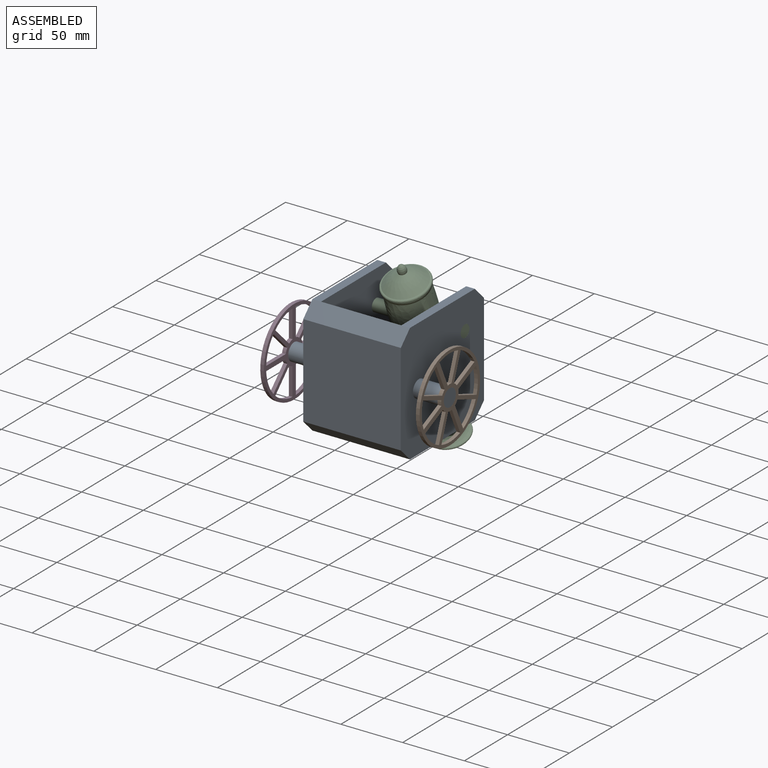
[diagram: assembled view]
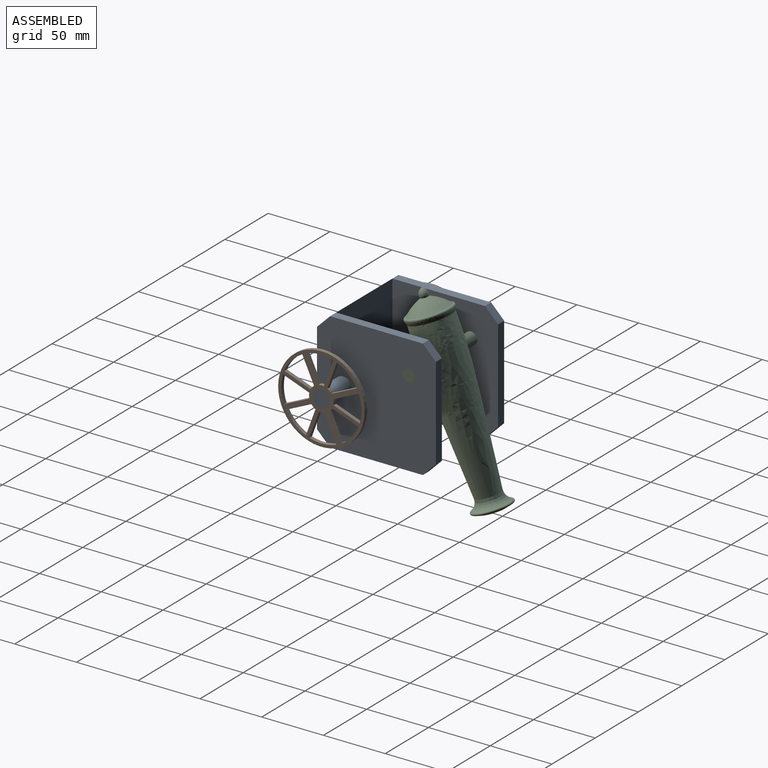
[diagram: assembled view, second angle]
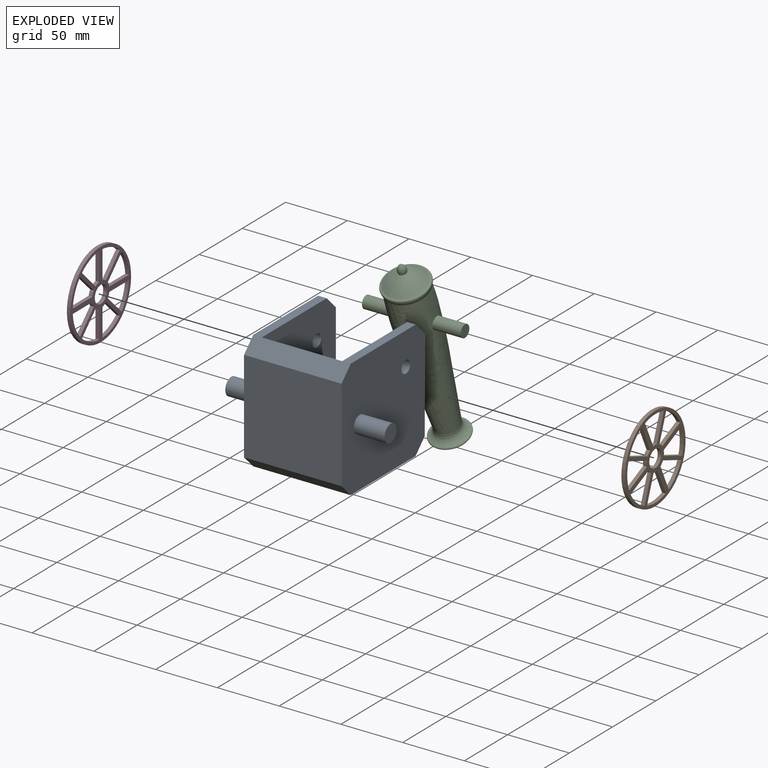
[diagram: exploded view]
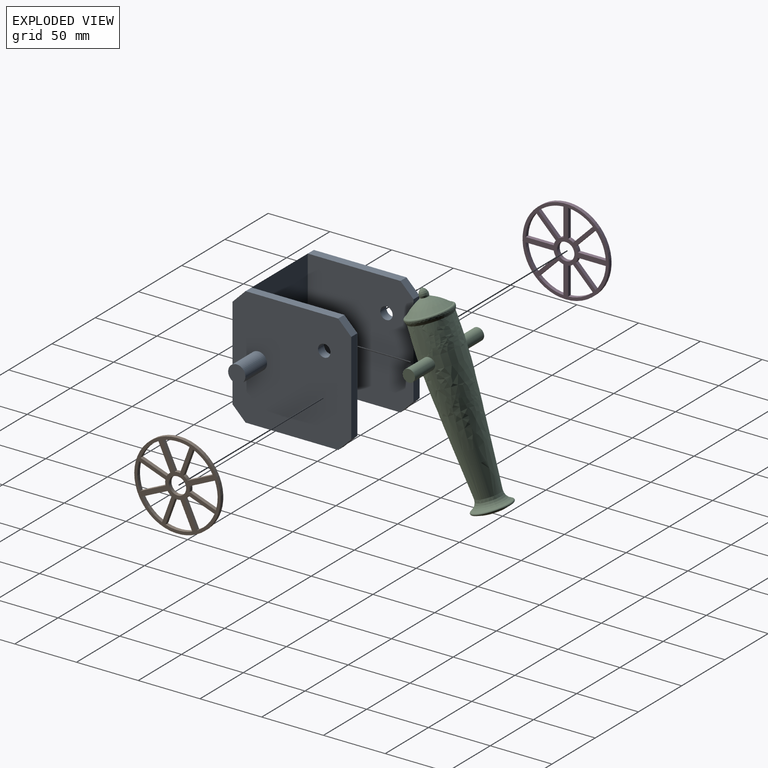
[diagram: exploded view, second angle]
ASSEMBLY  parts=4 mates=3
PART A: 24 faces, bbox 129x96.2x96.2 mm
  f0: plane 10.61x10.61mm, normal (0,0.71,0.71), area 105mm2, adj f1,f8,f9,f10
  f1: plane 75x7mm, normal (0,0,1), area 525mm2, adj f0,f2,f9,f10
  f2: plane 79x10.61mm, normal (0,-0.71,0.71), area 1185mm2, adj f1,f3,f10,f11,f13,f14
  f3: plane 79x75mm, normal (0,-1,0), area 5925mm2, adj f2,f4,f10,f13
  f4: plane 79x10.61mm, normal (0,-0.71,-0.71), area 1185mm2, adj f3,f5,f10,f11,f13,f15
  f5: plane 75x7mm, normal (0,0,-1), area 525mm2, adj f4,f6,f9,f10
  f6: plane 10.61x10.61mm, normal (0,0.71,-0.71), area 105mm2, adj f5,f8,f9,f10
  f7: cylinder r=5mm len=10mm, axis (-1,0,0), area 219.9mm2, adj f9,f10
  f8: plane 75x7mm, normal (0,1,0), area 525mm2, adj f0,f6,f9,f10
  f9: plane 96.21x85.61mm, normal (1,0,0), area 8045.4mm2, adj f0,f1,f5,f6,f7,f8,f11
  f10: plane 96.21x96.21mm, normal (-1,0,0), area 8799.5mm2, adj f0,f1,f2,f3,f4,f5,f6,f7
  f11: plane 96.21x65mm, normal (0,1,0), area 6253.9mm2, adj f2,f4,f9,f12
  f12: plane 96.21x85.61mm, normal (-1,0,0), area 8045.4mm2, adj f11,f14,f15,f16,f17,f18,f19
  f13: plane 96.21x96.21mm, normal (1,0,0), area 8799.5mm2, adj f2,f3,f4,f14,f15,f16,f17,f18
  f14: plane 75x7mm, normal (0,0,1), area 525mm2, adj f2,f12,f13,f18
  f15: plane 75x7mm, normal (0,0,-1), area 525mm2, adj f4,f12,f13,f16
  f16: plane 10.61x10.61mm, normal (0,0.71,-0.71), area 105mm2, adj f12,f13,f15,f17
  f17: plane 75x7mm, normal (0,1,0), area 525mm2, adj f12,f13,f16,f18
  f18: plane 10.61x10.61mm, normal (0,0.71,0.71), area 105mm2, adj f12,f13,f14,f17
  f19: cylinder r=5mm len=10mm, axis (-1,0,0), area 219.9mm2, adj f12,f13
  f20: cylinder r=7mm len=25mm, axis (-1,0,0), area 1099.6mm2, adj f13,f21
  f21: plane 14x14mm, normal (1,0,0), area 153.9mm2, adj f20
  f22: cylinder r=7mm len=25mm, axis (1,0,0), area 1099.6mm2, adj f10,f23
  f23: plane 14x14mm, normal (-1,0,0), area 153.9mm2, adj f22
PART B: 36 faces, bbox 3x70x70 mm
  f0: plane 22.63x3mm, normal (0,0,1), area 67.9mm2, adj f1,f33,f34,f35
  f1: cylinder r=10mm len=3.97mm, axis (-1,0,0), area 13.1mm2, adj f0,f2,f34,f35
  f2: plane 15.97x15.97mm, normal (0,0.71,-0.71), area 67.7mm2, adj f1,f33,f34,f35
  f3: cylinder r=32.5mm len=19.94mm, axis (-1,0,0), area 66.2mm2, adj f4,f26,f34,f35
  f4: plane 15.97x15.97mm, normal (0,-0.71,-0.71), area 67.7mm2, adj f3,f5,f34,f35
  f5: cylinder r=10mm len=3.97mm, axis (-1,0,0), area 13.1mm2, adj f4,f26,f34,f35
  f6: cylinder r=32.5mm len=19.94mm, axis (-1,0,0), area 66.2mm2, adj f7,f27,f34,f35
  f7: plane 22.63x3mm, normal (0,-1,0), area 67.9mm2, adj f6,f8,f34,f35
  f8: cylinder r=10mm len=3.97mm, axis (-1,0,0), area 13.1mm2, adj f7,f27,f34,f35
  f9: cylinder r=32.5mm len=19.94mm, axis (-1,0,0), area 66.2mm2, adj f10,f28,f34,f35
  f10: plane 15.97x15.97mm, normal (0,-0.71,0.71), area 67.7mm2, adj f9,f11,f34,f35
  f11: cylinder r=10mm len=3.97mm, axis (-1,0,0), area 13.1mm2, adj f10,f28,f34,f35
  f12: cylinder r=32.5mm len=19.94mm, axis (-1,0,0), area 66.2mm2, adj f13,f29,f34,f35
  f13: plane 15.97x15.97mm, normal (0,0.71,0.71), area 67.7mm2, adj f12,f14,f34,f35
  f14: cylinder r=10mm len=3.97mm, axis (-1,0,0), area 13.1mm2, adj f13,f29,f34,f35
  f15: cylinder r=32.5mm len=19.94mm, axis (-1,0,0), area 66.2mm2, adj f16,f30,f34,f35
  f16: plane 22.63x3mm, normal (0,1,0), area 67.9mm2, adj f15,f17,f34,f35
  f17: cylinder r=10mm len=3.97mm, axis (-1,0,0), area 13.1mm2, adj f16,f30,f34,f35
  f18: cylinder r=32.5mm len=19.94mm, axis (-1,0,0), area 66.2mm2, adj f19,f31,f34,f35
  f19: plane 15.97x15.97mm, normal (0,0.71,-0.71), area 67.7mm2, adj f18,f20,f34,f35
  f20: cylinder r=10mm len=3.97mm, axis (-1,0,0), area 13.1mm2, adj f19,f31,f34,f35
  f21: cylinder r=32.5mm len=19.94mm, axis (-1,0,0), area 66.2mm2, adj f22,f32,f34,f35
  f22: plane 22.63x3mm, normal (0,0,-1), area 67.9mm2, adj f21,f23,f34,f35
  f23: cylinder r=10mm len=3.97mm, axis (-1,0,0), area 13.1mm2, adj f22,f32,f34,f35
  f24: cylinder r=35mm len=70mm, axis (-1,0,0), area 659.7mm2, adj f34,f35
  f25: cylinder r=7mm len=14mm, axis (-1,0,0), area 131.9mm2, adj f34,f35
  f26: plane 22.63x3mm, normal (0,0,1), area 67.9mm2, adj f3,f5,f34,f35
  f27: plane 15.97x15.97mm, normal (0,0.71,0.71), area 67.7mm2, adj f6,f8,f34,f35
  f28: plane 22.63x3mm, normal (0,1,0), area 67.9mm2, adj f9,f11,f34,f35
  f29: plane 22.63x3mm, normal (0,0,-1), area 67.9mm2, adj f12,f14,f34,f35
  f30: plane 15.97x15.97mm, normal (0,-0.71,-0.71), area 67.7mm2, adj f15,f17,f34,f35
  f31: plane 22.63x3mm, normal (0,-1,0), area 67.9mm2, adj f18,f20,f34,f35
  f32: plane 15.97x15.97mm, normal (0,-0.71,0.71), area 67.7mm2, adj f21,f23,f34,f35
  f33: cylinder r=32.5mm len=19.94mm, axis (-1,0,0), area 66.2mm2, adj f0,f2,f34,f35
  f34: plane 70x70mm, normal (1,0,0), area 1313.6mm2, adj f0,f1,f2,f3,f4,f5,f6,f7
  f35: plane 70x70mm, normal (-1,0,0), area 1313.6mm2, adj f0,f1,f2,f3,f4,f5,f6,f7
PART C: 15 faces, bbox 80x36.4x152.1 mm
  f0: revolved ~30.01x30.01mm, area 506mm2, adj f1,f4
  f1: cylinder r=8.42mm len=132.43mm, axis (0,0,1), area 6844.2mm2, adj f0,f2,f3
  f2: plane 16.85x16.85mm, normal (0,0,-1), area 222.9mm2, adj f1
  f3: cylinder r=5mm len=16.85mm, axis (1,0,0), area 479mm2, adj f1
  f4: torus R=14.63mm, axis (0,0,-1), area 216.9mm2, adj f0
  f5: revolved ~33.34x33.34mm, area 1063.4mm2, adj f6
  f6: revolved ~36.35x36.35mm, area 670mm2, adj f5,f7
  f7: revolved ~126.15x34.87mm, area -9329.9mm2, adj f6,f8,f10,f12
  f8: cylinder r=5mm len=23.39mm, axis (1,0,0), area 723.6mm2, adj f7,f9
  f9: plane 10x10mm, normal (-1,0,0), area 78.5mm2, adj f8
  f10: cylinder r=5mm len=23.39mm, axis (1,0,0), area 723.6mm2, adj f7,f11
  f11: plane 10x10mm, normal (-1,0,0), area 78.5mm2, adj f10
  f12: torus R=11.06mm, axis (0,0,1), area 4.9mm2, adj f7
  f13: revolved ~30.24x30.24mm, area 1450.4mm2
  f14: revolved ~6.47x3.23mm, area 0mm2
PART D: same geometry as B
PLACE A t=(-79.57,44.95,11.27)mm fixed
PLACE B rot(axis=(1,0,0),115deg) t=(21.43,55.36,-37.04)mm
PLACE C rot(axis=(1,0,0),21.5deg) t=(-40.57,145.09,-107.77)mm
PLACE D t=(-104.57,55.36,-37.04)mm
MATE revolute C.f3 <-> A.f7  axis (1,0,0) through (-0.57,108.65,-15.36)mm
MATE revolute D.f1 <-> A.f20  axis (-1,0,0) through (-104.57,55.36,-37.04)mm
MATE revolute B.f1 <-> A.f20  axis (1,0,0) through (24.43,55.36,-37.04)mm
